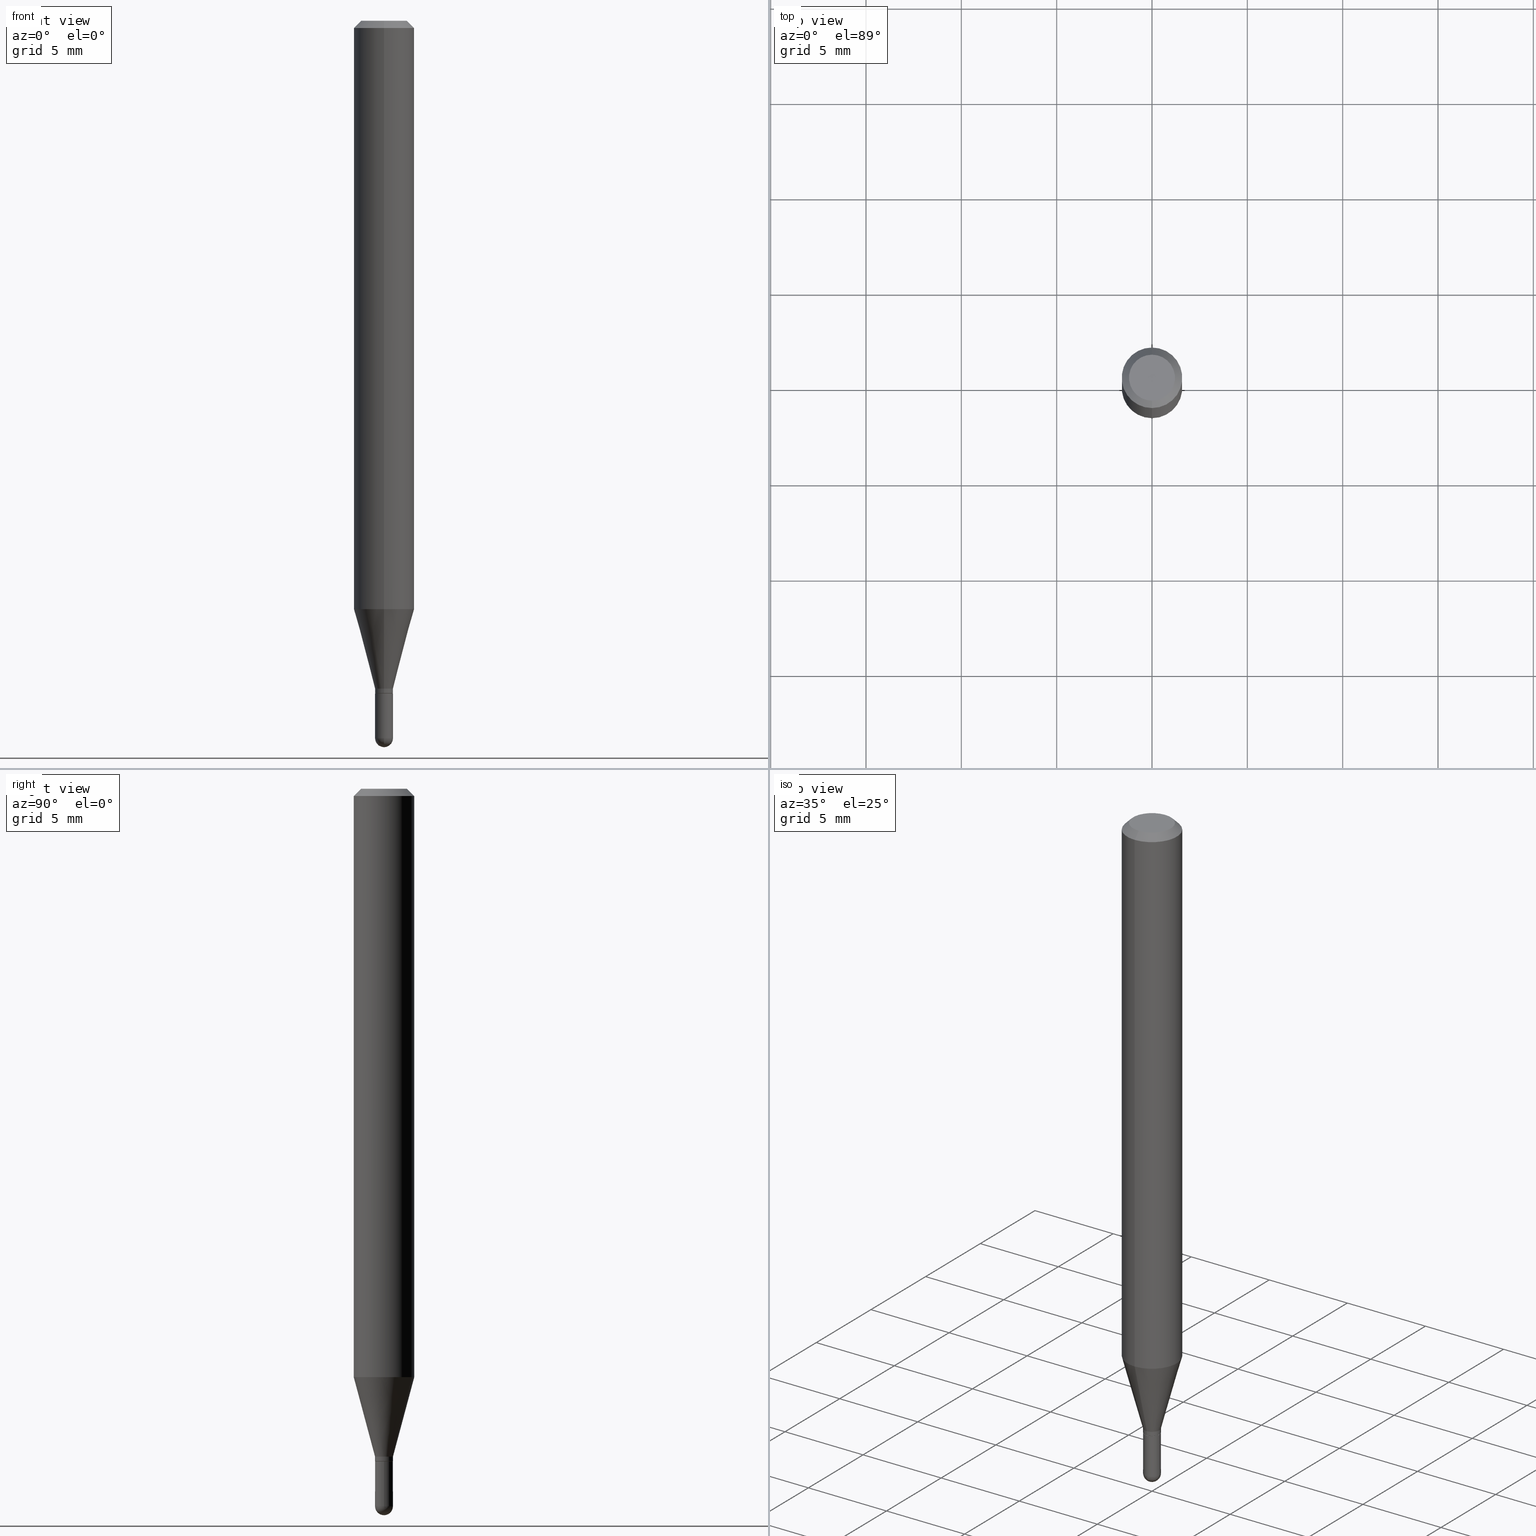
[diagram: canonical four-view strip — front | top / right | iso, engineering-drawing reading convention]
A machine part, canonical four-view strip (front | top / right | iso — engineering-drawing reading convention). The complete STEP part file that produces these views, byte-faithful:
ISO-10303-21;
HEADER;
FILE_DESCRIPTION (( 'STEP AP203' ),
    '1' );
FILE_NAME ('03135.STEP',
    '2024-03-08T18:19:02',
    ( '' ),
    ( '' ),
    'SwSTEP 2.0',
    'SolidWorks 2023',
    '' );
FILE_SCHEMA (( 'CONFIG_CONTROL_DESIGN' ));
ENDSEC;

DATA;
#1 = FACE_OUTER_BOUND ( 'NONE', #373, .T. ) ;
#2 = DIRECTION ( 'NONE',  ( 6.982962677686265922E-15, 1.000000000000000000, -3.491458252131256099E-15 ) ) ;
#3 = EDGE_LOOP ( 'NONE', ( #293, #369, #247, #97 ) ) ;
#4 = CIRCLE ( 'NONE', #445, 0.01849999999999992276 ) ;
#5 = DIRECTION ( 'NONE',  ( -2.445468806185136597E-29, 3.491481338843145583E-15, 1.000000000000000000 ) ) ;
#6 = ORIENTED_EDGE ( 'NONE', *, *, #205, .T. ) ;
#7 = EDGE_CURVE ( 'NONE', #469, #362, #102, .T. ) ;
#8 = CARTESIAN_POINT ( 'NONE',  ( -5.856631842478245107E-45, 8.361607690055266476E-31, 2.394875460690721585E-16 ) ) ;
#9 = EDGE_LOOP ( 'NONE', ( #410, #282, #76, #147 ) ) ;
#10 = LINE ( 'NONE', #13, #309 ) ;
#11 = DIRECTION ( 'NONE',  ( 2.445484927549883858E-29, -3.491458252131256099E-15, -1.000000000000000000 ) ) ;
#12 = AXIS2_PLACEMENT_3D ( 'NONE', #73, #37, #213 ) ;
#13 = CARTESIAN_POINT ( 'NONE',  ( -1.256933281983188226E-16, -0.01800000000000484893, -1.389000000000000234 ) ) ;
#14 = DIRECTION ( 'NONE',  ( -2.445484927549883578E-29, 3.491458252131256099E-15, 1.000000000000000000 ) ) ;
#15 = AXIS2_PLACEMENT_3D ( 'NONE', #140, #5, #336 ) ;
#16 = LOCAL_TIME ( 13, 19, 2.000000000000000000, #239 ) ;
#17 = DIRECTION ( 'NONE',  ( -4.851104656540964275E-15, -0.7071067811865500152, -0.7071067811865450192 ) ) ;
#18 = DIRECTION ( 'NONE',  ( -2.445484927549883858E-29, 3.491458252131256494E-15, 1.000000000000000000 ) ) ;
#19 = DIRECTION ( 'NONE',  ( -6.982962677686265133E-15, -1.000000000000000000, 0.000000000000000000 ) ) ;
#20 = PERSON_AND_ORGANIZATION_ROLE ( 'creator' ) ;
#21 = FACE_OUTER_BOUND ( 'NONE', #462, .T. ) ;
#22 = SECURITY_CLASSIFICATION_LEVEL ( 'unclassified' ) ;
#23 = AXIS2_PLACEMENT_3D ( 'NONE', #322, #400, #42 ) ;
#24 = CARTESIAN_POINT ( 'NONE',  ( 3.396756171791154536E-29, -4.849667579653129396E-15, -1.389000000000000234 ) ) ;
#25 = CARTESIAN_POINT ( 'NONE',  ( 2.970750059145847574E-29, -4.241387747752786622E-15, -1.214789764466969624 ) ) ;
#26 = DESIGN_CONTEXT ( 'detailed design', #190, 'design' ) ;
#27 = APPROVAL_ROLE ( '' ) ;
#28 =( LENGTH_UNIT ( ) NAMED_UNIT ( * ) SI_UNIT ( $, .METRE. ) );
#29 = ADVANCED_FACE ( 'NONE', ( #78 ), #174, .T. ) ;
#30 = COORDINATED_UNIVERSAL_TIME_OFFSET ( 5, 0, .BEHIND. ) ;
#31 = FACE_OUTER_BOUND ( 'NONE', #260, .T. ) ;
#32 = ADVANCED_FACE ( 'NONE', ( #210 ), #426, .F. ) ;
#33 = CIRCLE ( 'NONE', #159, 0.01850000000000000255 ) ;
#34 = ADVANCED_FACE ( 'NONE', ( #319 ), #188, .T. ) ;
#35 = ORIENTED_EDGE ( 'NONE', *, *, #111, .F. ) ;
#36 = VERTEX_POINT ( 'NONE', #358 ) ;
#37 = DIRECTION ( 'NONE',  ( 2.438088387897960049E-29, -3.491481338843145188E-15, -1.000000000000000000 ) ) ;
#38 = DIRECTION ( 'NONE',  ( -2.445468806185136597E-29, 3.491481338843145583E-15, 1.000000000000000000 ) ) ;
#39 = EDGE_CURVE ( 'NONE', #441, #218, #313, .T. ) ;
#40 = DIRECTION ( 'NONE',  ( -2.445484927549883578E-29, 3.491458252131256099E-15, 1.000000000000000000 ) ) ;
#41 = EDGE_CURVE ( 'NONE', #218, #338, #256, .T. ) ;
#42 = DIRECTION ( 'NONE',  ( -6.982962677686265922E-15, -1.000000000000000000, 3.491458252131256888E-15 ) ) ;
#43 = COORDINATED_UNIVERSAL_TIME_OFFSET ( 5, 0, .BEHIND. ) ;
#44 = EDGE_LOOP ( 'NONE', ( #290, #485, #366, #299 ) ) ;
#45 = VECTOR ( 'NONE', #128, 39.37007874015748143 ) ;
#46 = CARTESIAN_POINT ( 'NONE',  ( 4.440892098500924943E-16, 0.06249999999999993755, -0.01499999999999997863 ) ) ;
#47 = LINE ( 'NONE', #365, #360 ) ;
#48 = EDGE_CURVE ( 'NONE', #362, #413, #350, .T. ) ;
#49 = ORIENTED_EDGE ( 'NONE', *, *, #261, .F. ) ;
#50 = CARTESIAN_POINT ( 'NONE',  ( 3.396778564366788977E-29, -4.849635512210315358E-15, -1.389000000000000234 ) ) ;
#51 = ORIENTED_EDGE ( 'NONE', *, *, #503, .T. ) ;
#52 = DIRECTION ( 'NONE',  ( -6.982962677686265922E-15, -1.000000000000000000, 3.491458252131256494E-15 ) ) ;
#53 = ORIENTED_EDGE ( 'NONE', *, *, #301, .T. ) ;
#54 = ADVANCED_FACE ( 'NONE', ( #31 ), #504, .F. ) ;
#55 = VECTOR ( 'NONE', #320, 39.37007874015748143 ) ;
#56 = CC_DESIGN_APPROVAL ( #253, ( #285 ) ) ;
#57 = ORIENTED_EDGE ( 'NONE', *, *, #456, .T. ) ;
#58 = CARTESIAN_POINT ( 'NONE',  ( 3.395555821903014306E-29, -4.847889783084250515E-15, -1.388500000000000290 ) ) ;
#59 = DIRECTION ( 'NONE',  ( 1.839019923739601104E-15, 0.2588190451025250693, 0.9659258262890670910 ) ) ;
#60 = PRODUCT_DEFINITION ( 'UNKNOWN', '', #454, #26 ) ;
#61 = CONICAL_SURFACE ( 'NONE', #354, 0.06250000000000000000, 0.7853981633974483900 ) ;
#62 = CARTESIAN_POINT ( 'NONE',  ( 3.621379978728298144E-29, -5.174895200074542438E-15, -1.481500000000000039 ) ) ;
#63 = PERSON_AND_ORGANIZATION_ROLE ( 'design_owner' ) ;
#64 = CARTESIAN_POINT ( 'NONE',  ( 2.877698079828721388E-16, 0.01849999999999510716, -1.379000000000000004 ) ) ;
#65 = AXIS2_PLACEMENT_3D ( 'NONE', #509, #397, #168 ) ;
#66 = CONICAL_SURFACE ( 'NONE', #361, 0.01849999999999992276, 0.2617993877991502960 ) ;
#67 = DIRECTION ( 'NONE',  ( -2.445468806185136877E-29, 3.491481338843145188E-15, 1.000000000000000000 ) ) ;
#68 = CC_DESIGN_PERSON_AND_ORGANIZATION_ASSIGNMENT ( #383, #20, ( #454 ) ) ;
#69 = FACE_OUTER_BOUND ( 'NONE', #119, .T. ) ;
#70 = ORIENTED_EDGE ( 'NONE', *, *, #205, .F. ) ;
#71 = DATE_AND_TIME ( #352, #118 ) ;
#72 = VERTEX_POINT ( 'NONE', #122 ) ;
#73 = CARTESIAN_POINT ( 'NONE',  ( 1.291848095372298936E-16, 0.01849999999999515227, -1.389000000000000234 ) ) ;
#74 = DIRECTION ( 'NONE',  ( -2.445484927549883858E-29, 3.491458252131256494E-15, 1.000000000000000000 ) ) ;
#75 = AXIS2_PLACEMENT_3D ( 'NONE', #194, #483, #225 ) ;
#76 = ORIENTED_EDGE ( 'NONE', *, *, #493, .F. ) ;
#77 = CARTESIAN_POINT ( 'NONE',  ( 1.314504061156515121E-16, 0.01849999999999501349, -1.388500000000000290 ) ) ;
#78 = FACE_OUTER_BOUND ( 'NONE', #100, .T. ) ;
#79 = DIRECTION ( 'NONE',  ( 1.000000000000000000, -6.982962677686254089E-15, 0.000000000000000000 ) ) ;
#80 = ORIENTED_EDGE ( 'NONE', *, *, #96, .F. ) ;
#81 = EDGE_CURVE ( 'NONE', #208, #459, #47, .T. ) ;
#82 = FACE_OUTER_BOUND ( 'NONE', #507, .T. ) ;
#83 = DIRECTION ( 'NONE',  ( -6.982962677686265922E-15, -1.000000000000000000, 3.491458252131256099E-15 ) ) ;
#84 = ORIENTED_EDGE ( 'NONE', *, *, #110, .F. ) ;
#85 = AXIS2_PLACEMENT_3D ( 'NONE', #327, #131, #292 ) ;
#86 = AXIS2_PLACEMENT_3D ( 'NONE', #214, #38, #79 ) ;
#87 = LOCAL_TIME ( 13, 19, 2.000000000000000000, #43 ) ;
#88 = DIRECTION ( 'NONE',  ( 1.000000000000000000, -6.982962677686253300E-15, 0.000000000000000000 ) ) ;
#89 = DIMENSIONAL_EXPONENTS ( 1.000000000000000000, 0.000000000000000000, 0.000000000000000000, 0.000000000000000000, 0.000000000000000000, 0.000000000000000000, 0.000000000000000000 ) ;
#90 = CC_DESIGN_PERSON_AND_ORGANIZATION_ASSIGNMENT ( #244, #393, ( #285 ) ) ;
#91 = APPROVAL_STATUS ( 'not_yet_approved' ) ;
#92 = ADVANCED_FACE ( 'NONE', ( #280 ), #461, .T. ) ;
#93 = ORIENTED_EDGE ( 'NONE', *, *, #271, .T. ) ;
#94 = CARTESIAN_POINT ( 'NONE',  ( 1.314504061156517093E-16, 0.01849999999999510716, -1.379000000000000004 ) ) ;
#95 = APPLICATION_CONTEXT ( 'configuration controlled 3d designs of mechanical parts and assemblies' ) ;
#96 = EDGE_CURVE ( 'NONE', #36, #72, #427, .T. ) ;
#97 = ORIENTED_EDGE ( 'NONE', *, *, #301, .F. ) ;
#98 = CARTESIAN_POINT ( 'NONE',  ( -4.364351673553916201E-16, -0.06250000000000000000, 2.182161407582035308E-16 ) ) ;
#99 = DIRECTION ( 'NONE',  ( -2.445484927549883858E-29, 3.491458252131256494E-15, 1.000000000000000000 ) ) ;
#100 = EDGE_LOOP ( 'NONE', ( #70, #466, #258, #477 ) ) ;
#101 = CC_DESIGN_PERSON_AND_ORGANIZATION_ASSIGNMENT ( #499, #312, ( #60 ) ) ;
#102 = CIRCLE ( 'NONE', #332, 0.01850000000000000255 ) ;
#103 = AXIS2_PLACEMENT_3D ( 'NONE', #484, #11, #2 ) ;
#104 = DIRECTION ( 'NONE',  ( -6.982962677686266711E-15, -1.000000000000000000, 3.491458252131256099E-15 ) ) ;
#105 = DIRECTION ( 'NONE',  ( -6.982962677686265922E-15, -1.000000000000000000, 0.000000000000000000 ) ) ;
#106 = DIRECTION ( 'NONE',  ( -2.445484927549883858E-29, 3.491458252131256494E-15, 1.000000000000000000 ) ) ;
#107 = DIRECTION ( 'NONE',  ( -6.982962677686265922E-15, -1.000000000000000000, 0.000000000000000000 ) ) ;
#108 = AXIS2_PLACEMENT_3D ( 'NONE', #120, #196, #262 ) ;
#109 = AXIS2_PLACEMENT_3D ( 'NONE', #148, #99, #265 ) ;
#110 = EDGE_CURVE ( 'NONE', #195, #394, #150, .T. ) ;
#111 = EDGE_CURVE ( 'NONE', #334, #72, #415, .T. ) ;
#112 = CARTESIAN_POINT ( 'NONE',  ( -0.01849999999999999908, 1.314504061156185279E-16, -9.100029916971574589E-31 ) ) ;
#113 = LINE ( 'NONE', #94, #166 ) ;
#114 = ADVANCED_FACE ( 'NONE', ( #193 ), #339, .T. ) ;
#115 = PERSON_AND_ORGANIZATION ( #474, #251 ) ;
#116 = CIRCLE ( 'NONE', #15, 0.01850000000000000255 ) ;
#117 = DIRECTION ( 'NONE',  ( 1.000000000000000000, -6.982962677686254089E-15, 0.000000000000000000 ) ) ;
#118 = LOCAL_TIME ( 13, 19, 2.000000000000000000, #498 ) ;
#119 = EDGE_LOOP ( 'NONE', ( #323, #57, #220, #396 ) ) ;
#120 = CARTESIAN_POINT ( 'NONE',  ( 3.621379978728298144E-29, -5.174895200074542438E-15, -1.481500000000000039 ) ) ;
#121 = ORIENTED_EDGE ( 'NONE', *, *, #123, .T. ) ;
#122 = CARTESIAN_POINT ( 'NONE',  ( -4.364351673553912750E-16, -0.06250000000000005551, -0.01499999999999954321 ) ) ;
#123 = EDGE_CURVE ( 'NONE', #264, #459, #231, .T. ) ;
#124 = CARTESIAN_POINT ( 'NONE',  ( 3.621379978728298144E-29, -5.174895200074542438E-15, -1.481500000000000039 ) ) ;
#125 = ORIENTED_EDGE ( 'NONE', *, *, #96, .T. ) ;
#126 = CLOSED_SHELL ( 'NONE', ( #421, #92, #32, #29, #204 ) ) ;
#127 = VECTOR ( 'NONE', #234, 39.37007874015748143 ) ;
#128 = DIRECTION ( 'NONE',  ( -2.445484927549883578E-29, 3.491458252131256099E-15, 1.000000000000000000 ) ) ;
#129 = DIRECTION ( 'NONE',  ( -6.982962677686265922E-15, -1.000000000000000000, 0.000000000000000000 ) ) ;
#130 = CYLINDRICAL_SURFACE ( 'NONE', #23, 0.01849999999999992276 ) ;
#131 = DIRECTION ( 'NONE',  ( -2.445468806185136597E-29, 3.491481338843145583E-15, 1.000000000000000000 ) ) ;
#132 = CARTESIAN_POINT ( 'NONE',  ( 2.970750059145847574E-29, -4.241387747752786622E-15, -1.214789764466969624 ) ) ;
#133 = ORIENTED_EDGE ( 'NONE', *, *, #317, .F. ) ;
#134 = CARTESIAN_POINT ( 'NONE',  ( -0.01850000000000000255, -4.879698185459006925E-15, -1.481500000000000039 ) ) ;
#135 = EDGE_CURVE ( 'NONE', #195, #218, #337, .T. ) ;
#136 = ORIENTED_EDGE ( 'NONE', *, *, #490, .T. ) ;
#137 = CLOSED_SHELL ( 'NONE', ( #255, #34, #384, #185, #341, #511, #114, #287, #160, #54, #492, #242 ) ) ;
#138 = AXIS2_PLACEMENT_3D ( 'NONE', #62, #307, #382 ) ;
#139 = DIRECTION ( 'NONE',  ( -6.982962677686265922E-15, -1.000000000000000000, 4.370956789862821150E-15 ) ) ;
#140 = CARTESIAN_POINT ( 'NONE',  ( 3.622962036363280209E-29, -5.172629603496120178E-15, -1.481500000000000039 ) ) ;
#141 = DIRECTION ( 'NONE',  ( -2.445468806185136597E-29, 3.491481338843145583E-15, 1.000000000000000000 ) ) ;
#142 = EDGE_CURVE ( 'NONE', #36, #208, #197, .T. ) ;
#143 = ORIENTED_EDGE ( 'NONE', *, *, #238, .T. ) ;
#144 = DIRECTION ( 'NONE',  ( -2.445484927549883858E-29, 3.491458252131256494E-15, 1.000000000000000000 ) ) ;
#145 = FACE_OUTER_BOUND ( 'NONE', #296, .T. ) ;
#146 = EDGE_CURVE ( 'NONE', #208, #36, #235, .T. ) ;
#147 = ORIENTED_EDGE ( 'NONE', *, *, #407, .F. ) ;
#148 = CARTESIAN_POINT ( 'NONE',  ( 3.668227391324766810E-31, -5.237187378196801762E-17, -0.01499999999999976179 ) ) ;
#149 = DIRECTION ( 'NONE',  ( -2.445484927549883858E-29, 3.491458252131256494E-15, 1.000000000000000000 ) ) ;
#150 = CIRCLE ( 'NONE', #371, 0.01800000000000000211 ) ;
#151 = LINE ( 'NONE', #478, #127 ) ;
#152 = CYLINDRICAL_SURFACE ( 'NONE', #417, 0.06250000000000000000 ) ;
#153 = EDGE_CURVE ( 'NONE', #218, #441, #314, .T. ) ;
#154 = CARTESIAN_POINT ( 'NONE',  ( 1.296740492762519750E-16, 0.01799999999999515182, -1.389000000000000234 ) ) ;
#155 = PRODUCT_RELATED_PRODUCT_CATEGORY ( 'detail', '', ( #420 ) ) ;
#156 = APPROVAL_DATE_TIME ( #349, #223 ) ;
#157 = MANIFOLD_SOLID_BREP ( 'Body-Move/Copy2[1]', #126 ) ;
#158 = VECTOR ( 'NONE', #300, 39.37007874015748143 ) ;
#159 = AXIS2_PLACEMENT_3D ( 'NONE', #480, #440, #88 ) ;
#160 = ADVANCED_FACE ( 'NONE', ( #379 ), #199, .F. ) ;
#161 = PERSON_AND_ORGANIZATION ( #474, #251 ) ;
#162 = CARTESIAN_POINT ( 'NONE',  ( 3.665830122825232358E-29, -5.240620403132352355E-15, -1.499999999999999778 ) ) ;
#163 = DATE_TIME_ROLE ( 'creation_date' ) ;
#164 = CARTESIAN_POINT ( 'NONE',  ( 0.01850000000000000255, -5.140333401111821179E-15, -1.481500000000000039 ) ) ;
#165 = APPROVAL_DATE_TIME ( #494, #200 ) ;
#166 = VECTOR ( 'NONE', #59, 39.37007874015748143 ) ;
#167 = CC_DESIGN_PERSON_AND_ORGANIZATION_ASSIGNMENT ( #161, #63, ( #420 ) ) ;
#168 = DIRECTION ( 'NONE',  ( -6.982962677686265922E-15, -1.000000000000000000, 0.000000000000000000 ) ) ;
#169 = DIRECTION ( 'NONE',  ( -6.982962677686265922E-15, -1.000000000000000000, 4.370956789862821150E-15 ) ) ;
#170 = ORIENTED_EDGE ( 'NONE', *, *, #236, .T. ) ;
#171 = EDGE_LOOP ( 'NONE', ( #249, #136, #438, #230, #408 ) ) ;
#172 =( CONVERSION_BASED_UNIT ( 'INCH', #269 ) LENGTH_UNIT ( ) NAMED_UNIT ( #89 ) );
#173 = VERTEX_POINT ( 'NONE', #331 ) ;
#174 = SPHERICAL_SURFACE ( 'NONE', #65, 0.01849999999999990888 ) ;
#175 = VECTOR ( 'NONE', #40, 39.37007874015748143 ) ;
#176 = AXIS2_PLACEMENT_3D ( 'NONE', #414, #268, #104 ) ;
#177 = ORIENTED_EDGE ( 'NONE', *, *, #111, .T. ) ;
#178 = CC_DESIGN_APPROVAL ( #223, ( #60 ) ) ;
#179 = CARTESIAN_POINT ( 'NONE',  ( 3.396778564366788977E-29, -4.849635512210315358E-15, -1.389000000000000234 ) ) ;
#180 = CC_DESIGN_DATE_AND_TIME_ASSIGNMENT ( #71, #163, ( #60 ) ) ;
#181 = ORIENTED_EDGE ( 'NONE', *, *, #146, .F. ) ;
#182 = CARTESIAN_POINT ( 'NONE',  ( -1.291848095371593892E-16, -0.01850000000000513040, -1.481500000000000039 ) ) ;
#183 = ORIENTED_EDGE ( 'NONE', *, *, #302, .F. ) ;
#184 = ORIENTED_EDGE ( 'NONE', *, *, #215, .F. ) ;
#185 = ADVANCED_FACE ( 'NONE', ( #145 ), #152, .T. ) ;
#186 = CALENDAR_DATE ( 2024, 8, 3 ) ;
#187 = ORIENTED_EDGE ( 'NONE', *, *, #48, .T. ) ;
#188 = CONICAL_SURFACE ( 'NONE', #387, 0.01800000000000000211, 0.7853981633974739252 ) ;
#189 = AXIS2_PLACEMENT_3D ( 'NONE', #229, #375, #19 ) ;
#190 = APPLICATION_CONTEXT ( 'configuration controlled 3d designs of mechanical parts and assemblies' ) ;
#191 = LOCAL_TIME ( 13, 19, 2.000000000000000000, #311 ) ;
#192 = ORIENTED_EDGE ( 'NONE', *, *, #446, .F. ) ;
#193 = FACE_OUTER_BOUND ( 'NONE', #510, .T. ) ;
#194 = CARTESIAN_POINT ( 'NONE',  ( 3.668227391324766810E-31, -5.237187378196801762E-17, -0.01499999999999976179 ) ) ;
#195 = VERTEX_POINT ( 'NONE', #154 ) ;
#196 = DIRECTION ( 'NONE',  ( 1.000000000000000000, -6.982962677686265922E-15, 4.883557194083112901E-29 ) ) ;
#197 = CIRCLE ( 'NONE', #439, 0.04749999999999999362 ) ;
#198 = AXIS2_PLACEMENT_3D ( 'NONE', #351, #497, #202 ) ;
#199 = PLANE ( 'NONE',  #103 ) ;
#200 = APPROVAL ( #457, 'UNSPECIFIED' ) ;
#201 = DIRECTION ( 'NONE',  ( -6.982962677686265133E-15, -1.000000000000000000, 0.000000000000000000 ) ) ;
#202 = DIRECTION ( 'NONE',  ( -6.982962677686265922E-15, -1.000000000000000000, 0.000000000000000000 ) ) ;
#203 = CALENDAR_DATE ( 2024, 8, 3 ) ;
#204 = ADVANCED_FACE ( 'NONE', ( #409 ), #270, .T. ) ;
#205 = EDGE_CURVE ( 'NONE', #355, #413, #333, .T. ) ;
#206 = DATE_TIME_ROLE ( 'classification_date' ) ;
#207 = CIRCLE ( 'NONE', #86, 0.01849999999999999908 ) ;
#208 = VERTEX_POINT ( 'NONE', #452 ) ;
#209 = CC_DESIGN_APPROVAL ( #200, ( #454 ) ) ;
#210 = FACE_OUTER_BOUND ( 'NONE', #266, .T. ) ;
#211 = FACE_OUTER_BOUND ( 'NONE', #44, .T. ) ;
#212 = ORIENTED_EDGE ( 'NONE', *, *, #110, .T. ) ;
#213 = DIRECTION ( 'NONE',  ( -1.000000000000000000, 6.982962677686265922E-15, -4.876176775795935793E-29 ) ) ;
#214 = CARTESIAN_POINT ( 'NONE',  ( 3.396756171791154536E-29, -4.849667579653129396E-15, -1.389000000000000234 ) ) ;
#215 = EDGE_CURVE ( 'NONE', #72, #459, #402, .T. ) ;
#216 = ORIENTED_EDGE ( 'NONE', *, *, #215, .T. ) ;
#217 = AXIS2_PLACEMENT_3D ( 'NONE', #505, #472, #129 ) ;
#218 = VERTEX_POINT ( 'NONE', #77 ) ;
#219 = CARTESIAN_POINT ( 'NONE',  ( 0.000000000000000000, 0.000000000000000000, 0.000000000000000000 ) ) ;
#220 = ORIENTED_EDGE ( 'NONE', *, *, #506, .T. ) ;
#221 = CARTESIAN_POINT ( 'NONE',  ( -4.287811248607203282E-16, -0.06250000000000005551, -0.01499999999999954321 ) ) ;
#222 = CARTESIAN_POINT ( 'NONE',  ( 0.000000000000000000, 0.000000000000000000, 0.000000000000000000 ) ) ;
#223 = APPROVAL ( #348, 'UNSPECIFIED' ) ;
#224 = ORIENTED_EDGE ( 'NONE', *, *, #7, .F. ) ;
#225 = DIRECTION ( 'NONE',  ( 6.982962677686265922E-15, 1.000000000000000000, -3.483106191921935554E-15 ) ) ;
#226 = DIRECTION ( 'NONE',  ( -2.445484927549883858E-29, 3.491458252131256494E-15, 1.000000000000000000 ) ) ;
#227 = ORIENTED_EDGE ( 'NONE', *, *, #506, .F. ) ;
#228 = AXIS2_PLACEMENT_3D ( 'NONE', #24, #458, #117 ) ;
#229 = CARTESIAN_POINT ( 'NONE',  ( 3.396778564366788977E-29, -4.849635512210315358E-15, -1.389000000000000234 ) ) ;
#230 = ORIENTED_EDGE ( 'NONE', *, *, #302, .T. ) ;
#231 = LINE ( 'NONE', #368, #488 ) ;
#232 = PRODUCT_DEFINITION_SHAPE ( 'NONE', 'NONE',  #60 ) ;
#233 = APPLICATION_PROTOCOL_DEFINITION ( 'international standard', 'config_control_design', 1994, #95 ) ;
#234 = DIRECTION ( 'NONE',  ( -2.445468806185136877E-29, 3.491481338843145188E-15, 1.000000000000000000 ) ) ;
#235 = CIRCLE ( 'NONE', #176, 0.04749999999999999362 ) ;
#236 = EDGE_CURVE ( 'NONE', #173, #463, #207, .T. ) ;
#237 = CALENDAR_DATE ( 2024, 8, 3 ) ;
#238 = EDGE_CURVE ( 'NONE', #264, #334, #412, .T. ) ;
#239 = COORDINATED_UNIVERSAL_TIME_OFFSET ( 5, 0, .BEHIND. ) ;
#240 = DIRECTION ( 'NONE',  ( 2.445484927549883858E-29, -3.491458252131256494E-15, -1.000000000000000000 ) ) ;
#241 = CONICAL_SURFACE ( 'NONE', #198, 0.01849999999999992276, 0.2617993877991502960 ) ;
#242 = ADVANCED_FACE ( 'NONE', ( #211 ), #130, .T. ) ;
#243 = PERSON_AND_ORGANIZATION ( #474, #251 ) ;
#244 = PERSON_AND_ORGANIZATION ( #474, #251 ) ;
#245 = DIRECTION ( 'NONE',  ( 4.937700262164548042E-15, 0.7071067811865451302, -0.7071067811865499042 ) ) ;
#246 = LINE ( 'NONE', #277, #55 ) ;
#247 = ORIENTED_EDGE ( 'NONE', *, *, #39, .F. ) ;
#248 = AXIS2_PLACEMENT_3D ( 'NONE', #58, #226, #378 ) ;
#249 = ORIENTED_EDGE ( 'NONE', *, *, #391, .F. ) ;
#250 = APPROVAL_DATE_TIME ( #363, #253 ) ;
#251 = ORGANIZATION ( 'UNSPECIFIED', 'UNSPECIFIED', '' ) ;
#252 = ORIENTED_EDGE ( 'NONE', *, *, #503, .F. ) ;
#253 = APPROVAL ( #91, 'UNSPECIFIED' ) ;
#254 = CARTESIAN_POINT ( 'NONE',  ( 0.000000000000000000, 0.000000000000000000, 0.000000000000000000 ) ) ;
#255 = ADVANCED_FACE ( 'NONE', ( #464 ), #428, .T. ) ;
#256 = LINE ( 'NONE', #399, #175 ) ;
#257 = ORIENTED_EDGE ( 'NONE', *, *, #48, .F. ) ;
#258 = ORIENTED_EDGE ( 'NONE', *, *, #490, .F. ) ;
#259 = AXIS2_PLACEMENT_3D ( 'NONE', #124, #281, #468 ) ;
#260 = EDGE_LOOP ( 'NONE', ( #512, #84 ) ) ;
#261 = EDGE_CURVE ( 'NONE', #355, #469, #343, .T. ) ;
#262 = DIRECTION ( 'NONE',  ( -6.982962677686265922E-15, -1.000000000000000000, 0.000000000000000000 ) ) ;
#263 = EDGE_LOOP ( 'NONE', ( #325, #125, #216, #357 ) ) ;
#264 = VERTEX_POINT ( 'NONE', #286 ) ;
#265 = DIRECTION ( 'NONE',  ( -6.982962677686265922E-15, -1.000000000000000000, 3.483106191921935554E-15 ) ) ;
#266 = EDGE_LOOP ( 'NONE', ( #51, #170 ) ) ;
#267 = DIRECTION ( 'NONE',  ( -2.445484927549883858E-29, 3.491458252131256494E-15, 1.000000000000000000 ) ) ;
#268 = DIRECTION ( 'NONE',  ( -2.445484927549883858E-29, 3.491458252131256494E-15, 1.000000000000000000 ) ) ;
#269 = LENGTH_MEASURE_WITH_UNIT ( LENGTH_MEASURE( 0.02539999999999999897 ), #28 );
#270 = CYLINDRICAL_SURFACE ( 'NONE', #395, 0.01849999999999999908 ) ;
#271 = EDGE_CURVE ( 'NONE', #338, #264, #113, .T. ) ;
#272 = AXIS2_PLACEMENT_3D ( 'NONE', #419, #18, #491 ) ;
#273 = LINE ( 'NONE', #471, #45 ) ;
#274 = VECTOR ( 'NONE', #376, 39.37007874015748143 ) ;
#275 = CIRCLE ( 'NONE', #372, 0.06250000000000000000 ) ;
#276 = CIRCLE ( 'NONE', #189, 0.01800000000000000211 ) ;
#277 = CARTESIAN_POINT ( 'NONE',  ( -1.291848095371616572E-16, -0.01850000000000473835, -1.379000000000000004 ) ) ;
#278 = CARTESIAN_POINT ( 'NONE',  ( 3.396778564366788977E-29, -4.849635512210315358E-15, -1.389000000000000234 ) ) ;
#279 = DIRECTION ( 'NONE',  ( -2.445484927549883858E-29, 3.491458252131256494E-15, 1.000000000000000000 ) ) ;
#280 = FACE_OUTER_BOUND ( 'NONE', #424, .T. ) ;
#281 = DIRECTION ( 'NONE',  ( -1.000000000000000000, 6.982962677686265922E-15, -4.883557194083112340E-29 ) ) ;
#282 = ORIENTED_EDGE ( 'NONE', *, *, #41, .T. ) ;
#283 = AXIS2_PLACEMENT_3D ( 'NONE', #50, #279, #201 ) ;
#284 = DIRECTION ( 'NONE',  ( 1.000000000000000000, -6.982962677686253300E-15, 0.000000000000000000 ) ) ;
#285 = SECURITY_CLASSIFICATION ( '', '', #22 ) ;
#286 = CARTESIAN_POINT ( 'NONE',  ( 4.440892098500921985E-16, 0.06249999999999573952, -1.214789764466969846 ) ) ;
#287 = ADVANCED_FACE ( 'NONE', ( #1 ), #489, .T. ) ;
#288 = CARTESIAN_POINT ( 'NONE',  ( 3.622962036363280209E-29, -5.172629603496120178E-15, -1.481500000000000039 ) ) ;
#289 =( NAMED_UNIT ( * ) SI_UNIT ( $, .STERADIAN. ) SOLID_ANGLE_UNIT ( ) );
#290 = ORIENTED_EDGE ( 'NONE', *, *, #41, .F. ) ;
#291 = CARTESIAN_POINT ( 'NONE',  ( 1.314504061156544210E-16, 0.01849999999999478104, -1.481500000000000039 ) ) ;
#292 = DIRECTION ( 'NONE',  ( 1.000000000000000000, -6.982962677686253300E-15, 0.000000000000000000 ) ) ;
#293 = ORIENTED_EDGE ( 'NONE', *, *, #335, .T. ) ;
#294 = VECTOR ( 'NONE', #67, 39.37007874015748143 ) ;
#295 = APPROVAL_PERSON_ORGANIZATION ( #455, #200, #423 ) ;
#296 = EDGE_LOOP ( 'NONE', ( #435, #121, #184, #35 ) ) ;
#297 = CARTESIAN_POINT ( 'NONE',  ( 0.000000000000000000, 0.000000000000000000, 0.000000000000000000 ) ) ;
#298 = DIRECTION ( 'NONE',  ( 1.000000000000000000, 0.000000000000000000, 0.000000000000000000 ) ) ;
#299 = ORIENTED_EDGE ( 'NONE', *, *, #456, .F. ) ;
#300 = DIRECTION ( 'NONE',  ( -2.445484927549883578E-29, 3.491458252131256099E-15, 1.000000000000000000 ) ) ;
#301 = EDGE_CURVE ( 'NONE', #394, #441, #10, .T. ) ;
#302 = EDGE_CURVE ( 'NONE', #362, #463, #151, .T. ) ;
#303 = ORIENTED_EDGE ( 'NONE', *, *, #123, .F. ) ;
#304 = CARTESIAN_POINT ( 'NONE',  ( 0.000000000000000000, 0.000000000000000000, 0.000000000000000000 ) ) ;
#305 = DIRECTION ( 'NONE',  ( -6.982962677686265922E-15, -1.000000000000000000, 3.491458252131256494E-15 ) ) ;
#306 = CARTESIAN_POINT ( 'NONE',  ( -1.256933281983188226E-16, -0.01800000000000484893, -1.389000000000000234 ) ) ;
#307 = DIRECTION ( 'NONE',  ( 1.000000000000000000, -7.105427357601001070E-15, 4.926315508542082329E-29 ) ) ;
#308 = MECHANICAL_CONTEXT ( 'NONE', #95, 'mechanical' ) ;
#309 = VECTOR ( 'NONE', #370, 39.37007874015748143 ) ;
#310 = CARTESIAN_POINT ( 'NONE',  ( 3.668227391324766810E-31, -5.237187378196801762E-17, -0.01499999999999976179 ) ) ;
#311 = COORDINATED_UNIVERSAL_TIME_OFFSET ( 5, 0, .BEHIND. ) ;
#312 = PERSON_AND_ORGANIZATION_ROLE ( 'creator' ) ;
#313 = CIRCLE ( 'NONE', #217, 0.01849999999999992623 ) ;
#314 = CIRCLE ( 'NONE', #248, 0.01849999999999992623 ) ;
#315 = LOCAL_TIME ( 13, 19, 2.000000000000000000, #30 ) ;
#316 = EDGE_CURVE ( 'NONE', #413, #475, #116, .T. ) ;
#317 = EDGE_CURVE ( 'NONE', #459, #72, #324, .T. ) ;
#318 = UNCERTAINTY_MEASURE_WITH_UNIT (LENGTH_MEASURE( 1.000000000000000082E-05 ), #172, 'distance_accuracy_value', 'NONE');
#319 = FACE_OUTER_BOUND ( 'NONE', #3, .T. ) ;
#320 = DIRECTION ( 'NONE',  ( -1.807323732225330928E-15, -0.2588190451025182970, 0.9659258262890689783 ) ) ;
#321 = ORIENTED_EDGE ( 'NONE', *, *, #317, .T. ) ;
#322 = CARTESIAN_POINT ( 'NONE',  ( 0.000000000000000000, 0.000000000000000000, 0.000000000000000000 ) ) ;
#323 = ORIENTED_EDGE ( 'NONE', *, *, #271, .F. ) ;
#324 = CIRCLE ( 'NONE', #109, 0.06250000000000000000 ) ;
#325 = ORIENTED_EDGE ( 'NONE', *, *, #142, .F. ) ;
#326 = CARTESIAN_POINT ( 'NONE',  ( -1.291848095371616572E-16, -0.01850000000000473835, -1.379000000000000004 ) ) ;
#327 = CARTESIAN_POINT ( 'NONE',  ( 3.622962036363280209E-29, -5.172629603496120178E-15, -1.481500000000000039 ) ) ;
#328 = ORIENTED_EDGE ( 'NONE', *, *, #493, .T. ) ;
#329 = ORIENTED_EDGE ( 'NONE', *, *, #135, .F. ) ;
#330 = DIRECTION ( 'NONE',  ( -2.445484927549883858E-29, 3.491458252131256494E-15, 1.000000000000000000 ) ) ;
#331 = CARTESIAN_POINT ( 'NONE',  ( -0.01849999999999999908, -4.879698185459006925E-15, -1.389000000000000234 ) ) ;
#332 = AXIS2_PLACEMENT_3D ( 'NONE', #288, #467, #284 ) ;
#333 = CIRCLE ( 'NONE', #138, 0.01849999999999990888 ) ;
#334 = VERTEX_POINT ( 'NONE', #411 ) ;
#335 = EDGE_CURVE ( 'NONE', #394, #195, #276, .T. ) ;
#336 = DIRECTION ( 'NONE',  ( 1.000000000000000000, -6.982962677686253300E-15, 0.000000000000000000 ) ) ;
#337 = LINE ( 'NONE', #487, #274 ) ;
#338 = VERTEX_POINT ( 'NONE', #64 ) ;
#339 = CYLINDRICAL_SURFACE ( 'NONE', #486, 0.06250000000000000000 ) ;
#340 = CC_DESIGN_DATE_AND_TIME_ASSIGNMENT ( #385, #206, ( #285 ) ) ;
#341 = ADVANCED_FACE ( 'NONE', ( #21 ), #241, .T. ) ;
#342 = CARTESIAN_POINT ( 'NONE',  ( 0.000000000000000000, 0.000000000000000000, 0.000000000000000000 ) ) ;
#343 = CIRCLE ( 'NONE', #259, 0.01849999999999990888 ) ;
#344 = APPROVAL_PERSON_ORGANIZATION ( #115, #223, #27 ) ;
#345 = DIRECTION ( 'NONE',  ( -6.982962677686266711E-15, -1.000000000000000000, 3.491458252131256099E-15 ) ) ;
#346 = FACE_OUTER_BOUND ( 'NONE', #263, .T. ) ;
#347 = DIRECTION ( 'NONE',  ( 1.000000000000000000, -6.982962677686266711E-15, 4.876176775795935232E-29 ) ) ;
#348 = APPROVAL_STATUS ( 'not_yet_approved' ) ;
#349 = DATE_AND_TIME ( #237, #191 ) ;
#350 = CIRCLE ( 'NONE', #85, 0.01850000000000000255 ) ;
#351 = CARTESIAN_POINT ( 'NONE',  ( 3.372323715091289390E-29, -4.814720929689002730E-15, -1.379000000000000004 ) ) ;
#352 = CALENDAR_DATE ( 2024, 8, 3 ) ;
#353 = CC_DESIGN_PERSON_AND_ORGANIZATION_ASSIGNMENT ( #243, #392, ( #454 ) ) ;
#354 = AXIS2_PLACEMENT_3D ( 'NONE', #310, #240, #418 ) ;
#355 = VERTEX_POINT ( 'NONE', #162 ) ;
#356 = DIRECTION ( 'NONE',  ( -2.445484927549883858E-29, 3.491458252131256494E-15, 1.000000000000000000 ) ) ;
#357 = ORIENTED_EDGE ( 'NONE', *, *, #81, .F. ) ;
#358 = CARTESIAN_POINT ( 'NONE',  ( -3.773273898774340269E-16, -0.04749999999999999362, 4.053318130453067966E-16 ) ) ;
#359 = DIRECTION ( 'NONE',  ( 1.000000000000000000, -6.982962677686266711E-15, 4.876176775795935232E-29 ) ) ;
#360 = VECTOR ( 'NONE', #245, 39.37007874015748143 ) ;
#361 = AXIS2_PLACEMENT_3D ( 'NONE', #465, #267, #416 ) ;
#362 = VERTEX_POINT ( 'NONE', #164 ) ;
#363 = DATE_AND_TIME ( #186, #87 ) ;
#364 = DIRECTION ( 'NONE',  ( -6.982962677686265922E-15, -1.000000000000000000, 3.491458252131256888E-15 ) ) ;
#365 = CARTESIAN_POINT ( 'NONE',  ( 4.364351673553919652E-16, 0.06249999999999995143, -0.01499999999999997863 ) ) ;
#366 = ORIENTED_EDGE ( 'NONE', *, *, #407, .T. ) ;
#367 = DIRECTION ( 'NONE',  ( -6.982962677686265133E-15, -1.000000000000000000, 0.000000000000000000 ) ) ;
#368 = CARTESIAN_POINT ( 'NONE',  ( 4.440892098500625669E-16, 0.06250000000000000000, -2.182161407582035308E-16 ) ) ;
#369 = ORIENTED_EDGE ( 'NONE', *, *, #135, .T. ) ;
#370 = DIRECTION ( 'NONE',  ( -4.937700262164674260E-15, -0.7071067811865632269, 0.7071067811865319186 ) ) ;
#371 = AXIS2_PLACEMENT_3D ( 'NONE', #386, #447, #367 ) ;
#372 = AXIS2_PLACEMENT_3D ( 'NONE', #25, #144, #139 ) ;
#373 = EDGE_LOOP ( 'NONE', ( #80, #181, #479, #321 ) ) ;
#374 = CARTESIAN_POINT ( 'NONE',  ( 0.01849999999999999908, -4.978852389190325393E-15, -1.389000000000000234 ) ) ;
#375 = DIRECTION ( 'NONE',  ( -2.445484927549883858E-29, 3.491458252131256494E-15, 1.000000000000000000 ) ) ;
#376 = DIRECTION ( 'NONE',  ( 5.024295867788190974E-15, 0.7071067811865681119, 0.7071067811865270336 ) ) ;
#377 = ORIENTED_EDGE ( 'NONE', *, *, #142, .T. ) ;
#378 = DIRECTION ( 'NONE',  ( -6.982962677686265922E-15, -1.000000000000000000, 0.000000000000000000 ) ) ;
#379 = FACE_OUTER_BOUND ( 'NONE', #482, .T. ) ;
#380 = AXIS2_PLACEMENT_3D ( 'NONE', #219, #74, #364 ) ;
#381 = APPROVAL_PERSON_ORGANIZATION ( #434, #253, #401 ) ;
#382 = DIRECTION ( 'NONE',  ( 7.105427357601001859E-15, 1.000000000000000000, 0.000000000000000000 ) ) ;
#383 = PERSON_AND_ORGANIZATION ( #474, #251 ) ;
#384 = ADVANCED_FACE ( 'NONE', ( #346 ), #61, .T. ) ;
#385 = DATE_AND_TIME ( #203, #315 ) ;
#386 = CARTESIAN_POINT ( 'NONE',  ( 3.396778564366788977E-29, -4.849635512210315358E-15, -1.389000000000000234 ) ) ;
#387 = AXIS2_PLACEMENT_3D ( 'NONE', #179, #356, #404 ) ;
#388 = CIRCLE ( 'NONE', #470, 0.01849999999999992276 ) ;
#389 =( GEOMETRIC_REPRESENTATION_CONTEXT ( 3 ) GLOBAL_UNCERTAINTY_ASSIGNED_CONTEXT ( ( #318 ) ) GLOBAL_UNIT_ASSIGNED_CONTEXT ( ( #172, #432, #289 ) ) REPRESENTATION_CONTEXT ( 'NONE', 'WORKASPACE' ) );
#390 = ADVANCED_BREP_SHAPE_REPRESENTATION ( '03135', ( #157, #495, #430 ), #389 ) ;
#391 = EDGE_CURVE ( 'NONE', #475, #173, #422, .T. ) ;
#392 = PERSON_AND_ORGANIZATION_ROLE ( 'design_supplier' ) ;
#393 = PERSON_AND_ORGANIZATION_ROLE ( 'classification_officer' ) ;
#394 = VERTEX_POINT ( 'NONE', #306 ) ;
#395 = AXIS2_PLACEMENT_3D ( 'NONE', #222, #141, #347 ) ;
#396 = ORIENTED_EDGE ( 'NONE', *, *, #238, .F. ) ;
#397 = DIRECTION ( 'NONE',  ( 1.000000000000000000, -6.982962677686265922E-15, 4.883557194083112901E-29 ) ) ;
#398 = DIRECTION ( 'NONE',  ( -2.445468806185136597E-29, 3.491481338843145583E-15, 1.000000000000000000 ) ) ;
#399 = CARTESIAN_POINT ( 'NONE',  ( 1.314504061156179609E-16, 0.01849999999999992276, -6.459197766442797978E-17 ) ) ;
#400 = DIRECTION ( 'NONE',  ( -2.445484927549883858E-29, 3.491458252131256494E-15, 1.000000000000000000 ) ) ;
#401 = APPROVAL_ROLE ( '' ) ;
#402 = CIRCLE ( 'NONE', #272, 0.06250000000000000000 ) ;
#403 = CC_DESIGN_SECURITY_CLASSIFICATION ( #285, ( #454 ) ) ;
#404 = DIRECTION ( 'NONE',  ( -6.982962677686265133E-15, -1.000000000000000000, 0.000000000000000000 ) ) ;
#405 = ORIENTED_EDGE ( 'NONE', *, *, #316, .T. ) ;
#406 = FACE_OUTER_BOUND ( 'NONE', #442, .T. ) ;
#407 = EDGE_CURVE ( 'NONE', #441, #429, #273, .T. ) ;
#408 = ORIENTED_EDGE ( 'NONE', *, *, #236, .F. ) ;
#409 = FACE_OUTER_BOUND ( 'NONE', #171, .T. ) ;
#410 = ORIENTED_EDGE ( 'NONE', *, *, #39, .T. ) ;
#411 = CARTESIAN_POINT ( 'NONE',  ( -4.364351673553620871E-16, -0.06250000000000427436, -1.214789764466969402 ) ) ;
#412 = CIRCLE ( 'NONE', #453, 0.06250000000000000000 ) ;
#413 = VERTEX_POINT ( 'NONE', #291 ) ;
#414 = CARTESIAN_POINT ( 'NONE',  ( -5.856631842478245107E-45, 8.361607690055266476E-31, 2.394875460690721585E-16 ) ) ;
#415 = LINE ( 'NONE', #98, #158 ) ;
#416 = DIRECTION ( 'NONE',  ( -6.982962677686265922E-15, -1.000000000000000000, 0.000000000000000000 ) ) ;
#417 = AXIS2_PLACEMENT_3D ( 'NONE', #297, #481, #305 ) ;
#418 = DIRECTION ( 'NONE',  ( 6.982962677686265922E-15, 1.000000000000000000, -3.483106191921935554E-15 ) ) ;
#419 = CARTESIAN_POINT ( 'NONE',  ( 3.668227391324766810E-31, -5.237187378196801762E-17, -0.01499999999999976179 ) ) ;
#420 = PRODUCT ( '03135', '03135', '', ( #308 ) ) ;
#421 = ADVANCED_FACE ( 'NONE', ( #82 ), #433, .T. ) ;
#422 = LINE ( 'NONE', #112, #294 ) ;
#423 = APPROVAL_ROLE ( '' ) ;
#424 = EDGE_LOOP ( 'NONE', ( #49, #6, #257, #224 ) ) ;
#425 = CALENDAR_DATE ( 2024, 8, 3 ) ;
#426 = PLANE ( 'NONE',  #12 ) ;
#427 = LINE ( 'NONE', #221, #500 ) ;
#428 = CYLINDRICAL_SURFACE ( 'NONE', #380, 0.01849999999999992276 ) ;
#429 = VERTEX_POINT ( 'NONE', #326 ) ;
#430 = AXIS2_PLACEMENT_3D ( 'NONE', #342, #450, #298 ) ;
#431 = ORIENTED_EDGE ( 'NONE', *, *, #153, .F. ) ;
#432 =( NAMED_UNIT ( * ) PLANE_ANGLE_UNIT ( ) SI_UNIT ( $, .RADIAN. ) );
#433 = CYLINDRICAL_SURFACE ( 'NONE', #501, 0.01849999999999999908 ) ;
#434 = PERSON_AND_ORGANIZATION ( #474, #251 ) ;
#435 = ORIENTED_EDGE ( 'NONE', *, *, #446, .T. ) ;
#436 = CARTESIAN_POINT ( 'NONE',  ( -1.291848095371618790E-16, -0.01850000000000483549, -1.388500000000000290 ) ) ;
#437 = DIRECTION ( 'NONE',  ( -2.445484927549883858E-29, 3.491458252131256099E-15, 1.000000000000000000 ) ) ;
#438 = ORIENTED_EDGE ( 'NONE', *, *, #7, .T. ) ;
#439 = AXIS2_PLACEMENT_3D ( 'NONE', #8, #449, #345 ) ;
#440 = DIRECTION ( 'NONE',  ( -2.445468806185136597E-29, 3.491481338843145583E-15, 1.000000000000000000 ) ) ;
#441 = VERTEX_POINT ( 'NONE', #436 ) ;
#442 = EDGE_LOOP ( 'NONE', ( #329, #212, #53, #431 ) ) ;
#443 = ORIENTED_EDGE ( 'NONE', *, *, #391, .T. ) ;
#444 = AXIS2_PLACEMENT_3D ( 'NONE', #278, #437, #83 ) ;
#445 = AXIS2_PLACEMENT_3D ( 'NONE', #448, #330, #105 ) ;
#446 = EDGE_CURVE ( 'NONE', #334, #264, #275, .T. ) ;
#447 = DIRECTION ( 'NONE',  ( -2.445484927549883858E-29, 3.491458252131256494E-15, 1.000000000000000000 ) ) ;
#448 = CARTESIAN_POINT ( 'NONE',  ( 3.372323715091289390E-29, -4.814720929689002730E-15, -1.379000000000000004 ) ) ;
#449 = DIRECTION ( 'NONE',  ( -2.445484927549883858E-29, 3.491458252131256494E-15, 1.000000000000000000 ) ) ;
#450 = DIRECTION ( 'NONE',  ( 0.000000000000000000, 0.000000000000000000, 1.000000000000000000 ) ) ;
#451 = CARTESIAN_POINT ( 'NONE',  ( 3.372323715091289390E-29, -4.814720929689002730E-15, -1.379000000000000004 ) ) ;
#452 = CARTESIAN_POINT ( 'NONE',  ( 3.840629472727447874E-16, 0.04749999999999999362, 7.364327909283752044E-17 ) ) ;
#453 = AXIS2_PLACEMENT_3D ( 'NONE', #132, #473, #169 ) ;
#454 = PRODUCT_DEFINITION_FORMATION_WITH_SPECIFIED_SOURCE ( 'ANY', '', #420, .NOT_KNOWN. ) ;
#455 = PERSON_AND_ORGANIZATION ( #474, #251 ) ;
#456 = EDGE_CURVE ( 'NONE', #338, #429, #4, .T. ) ;
#457 = APPROVAL_STATUS ( 'not_yet_approved' ) ;
#458 = DIRECTION ( 'NONE',  ( -2.445468806185136597E-29, 3.491481338843145583E-15, 1.000000000000000000 ) ) ;
#459 = VERTEX_POINT ( 'NONE', #46 ) ;
#460 = APPLICATION_PROTOCOL_DEFINITION ( 'international standard', 'config_control_design', 1994, #190 ) ;
#461 = SPHERICAL_SURFACE ( 'NONE', #108, 0.01849999999999990888 ) ;
#462 = EDGE_LOOP ( 'NONE', ( #328, #93, #192, #227 ) ) ;
#463 = VERTEX_POINT ( 'NONE', #374 ) ;
#464 = FACE_OUTER_BOUND ( 'NONE', #9, .T. ) ;
#465 = CARTESIAN_POINT ( 'NONE',  ( 3.372323715091289390E-29, -4.814720929689002730E-15, -1.379000000000000004 ) ) ;
#466 = ORIENTED_EDGE ( 'NONE', *, *, #261, .T. ) ;
#467 = DIRECTION ( 'NONE',  ( -2.445468806185136597E-29, 3.491481338843145583E-15, 1.000000000000000000 ) ) ;
#468 = DIRECTION ( 'NONE',  ( -6.982962677686265922E-15, -1.000000000000000000, 0.000000000000000000 ) ) ;
#469 = VERTEX_POINT ( 'NONE', #182 ) ;
#470 = AXIS2_PLACEMENT_3D ( 'NONE', #451, #106, #107 ) ;
#471 = CARTESIAN_POINT ( 'NONE',  ( -1.291848095371953810E-16, -0.01849999999999992276, 6.459197766442797978E-17 ) ) ;
#472 = DIRECTION ( 'NONE',  ( -2.445484927549883858E-29, 3.491458252131256494E-15, 1.000000000000000000 ) ) ;
#473 = DIRECTION ( 'NONE',  ( -2.445484927549883858E-29, 3.491458252131256494E-15, 1.000000000000000000 ) ) ;
#474 = PERSON ( 'UNSPECIFIED', 'UNSPECIFIED', 'UNSPECIFIED', ('UNSPECIFIED'), ('UNSPECIFIED'), ('UNSPECIFIED') ) ;
#475 = VERTEX_POINT ( 'NONE', #134 ) ;
#476 = SHAPE_DEFINITION_REPRESENTATION ( #232, #390 ) ;
#477 = ORIENTED_EDGE ( 'NONE', *, *, #316, .F. ) ;
#478 = CARTESIAN_POINT ( 'NONE',  ( 0.01849999999999999908, -1.291848095371959233E-16, 9.020927035222480096E-31 ) ) ;
#479 = ORIENTED_EDGE ( 'NONE', *, *, #81, .T. ) ;
#480 = CARTESIAN_POINT ( 'NONE',  ( 3.622962036363280209E-29, -5.172629603496120178E-15, -1.481500000000000039 ) ) ;
#481 = DIRECTION ( 'NONE',  ( -2.445484927549883858E-29, 3.491458252131256494E-15, 1.000000000000000000 ) ) ;
#482 = EDGE_LOOP ( 'NONE', ( #502, #377 ) ) ;
#483 = DIRECTION ( 'NONE',  ( 2.445484927549883858E-29, -3.491458252131256494E-15, -1.000000000000000000 ) ) ;
#484 = CARTESIAN_POINT ( 'NONE',  ( 3.316907271900976096E-16, 0.04749999999999999362, -4.610049394169857731E-17 ) ) ;
#485 = ORIENTED_EDGE ( 'NONE', *, *, #153, .T. ) ;
#486 = AXIS2_PLACEMENT_3D ( 'NONE', #304, #149, #52 ) ;
#487 = CARTESIAN_POINT ( 'NONE',  ( 1.278976924368519941E-16, 0.01799999999999515182, -1.389000000000000234 ) ) ;
#488 = VECTOR ( 'NONE', #14, 39.37007874015748143 ) ;
#489 = CONICAL_SURFACE ( 'NONE', #75, 0.06250000000000000000, 0.7853981633974483900 ) ;
#490 = EDGE_CURVE ( 'NONE', #475, #469, #33, .T. ) ;
#491 = DIRECTION ( 'NONE',  ( -6.982962677686265922E-15, -1.000000000000000000, 3.483106191921935554E-15 ) ) ;
#492 = ADVANCED_FACE ( 'NONE', ( #406 ), #496, .T. ) ;
#493 = EDGE_CURVE ( 'NONE', #429, #338, #388, .T. ) ;
#494 = DATE_AND_TIME ( #425, #16 ) ;
#495 = MANIFOLD_SOLID_BREP ( 'Body-Move/Copy2[2]', #137 ) ;
#496 = CONICAL_SURFACE ( 'NONE', #283, 0.01800000000000000211, 0.7853981633974739252 ) ;
#497 = DIRECTION ( 'NONE',  ( -2.445484927549883858E-29, 3.491458252131256494E-15, 1.000000000000000000 ) ) ;
#498 = COORDINATED_UNIVERSAL_TIME_OFFSET ( 5, 0, .BEHIND. ) ;
#499 = PERSON_AND_ORGANIZATION ( #474, #251 ) ;
#500 = VECTOR ( 'NONE', #17, 39.37007874015748143 ) ;
#501 = AXIS2_PLACEMENT_3D ( 'NONE', #254, #398, #359 ) ;
#502 = ORIENTED_EDGE ( 'NONE', *, *, #146, .T. ) ;
#503 = EDGE_CURVE ( 'NONE', #463, #173, #508, .T. ) ;
#504 = PLANE ( 'NONE',  #444 ) ;
#505 = CARTESIAN_POINT ( 'NONE',  ( 3.395555821903014306E-29, -4.847889783084250515E-15, -1.388500000000000290 ) ) ;
#506 = EDGE_CURVE ( 'NONE', #429, #334, #246, .T. ) ;
#507 = EDGE_LOOP ( 'NONE', ( #405, #443, #252, #183, #187 ) ) ;
#508 = CIRCLE ( 'NONE', #228, 0.01849999999999999908 ) ;
#509 = CARTESIAN_POINT ( 'NONE',  ( 3.621379978728298144E-29, -5.174895200074542438E-15, -1.481500000000000039 ) ) ;
#510 = EDGE_LOOP ( 'NONE', ( #303, #143, #177, #133 ) ) ;
#511 = ADVANCED_FACE ( 'NONE', ( #69 ), #66, .T. ) ;
#512 = ORIENTED_EDGE ( 'NONE', *, *, #335, .F. ) ;
ENDSEC;
END-ISO-10303-21;
